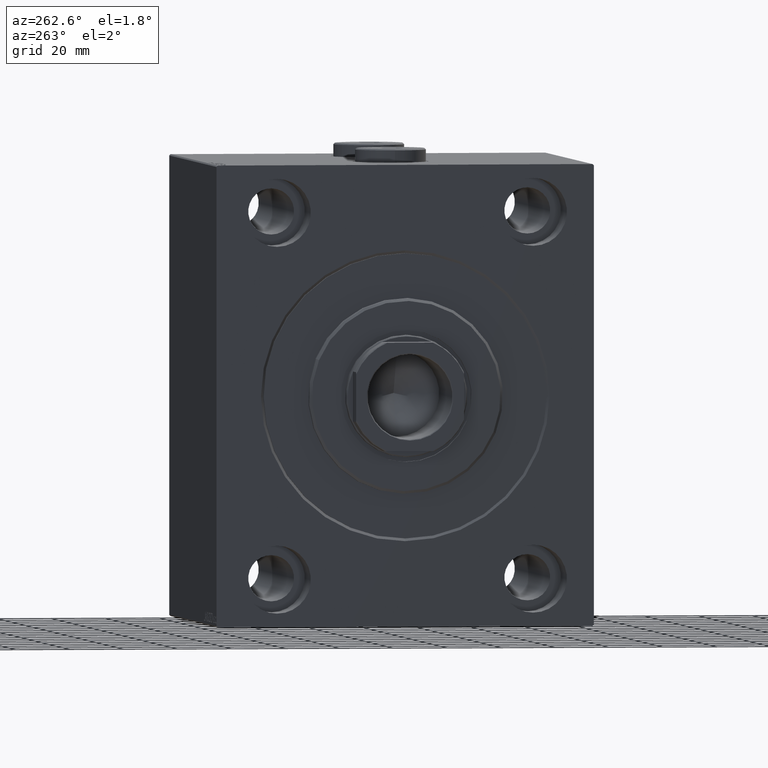
[diagram: clean part render]
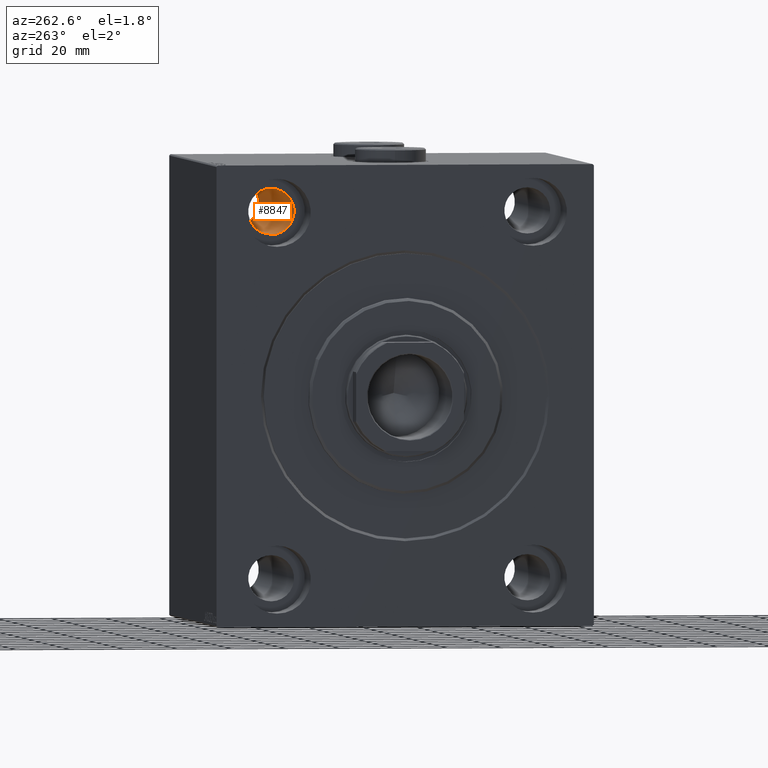
[diagram: same view with one face highlighted and labeled with its STEP entity id]
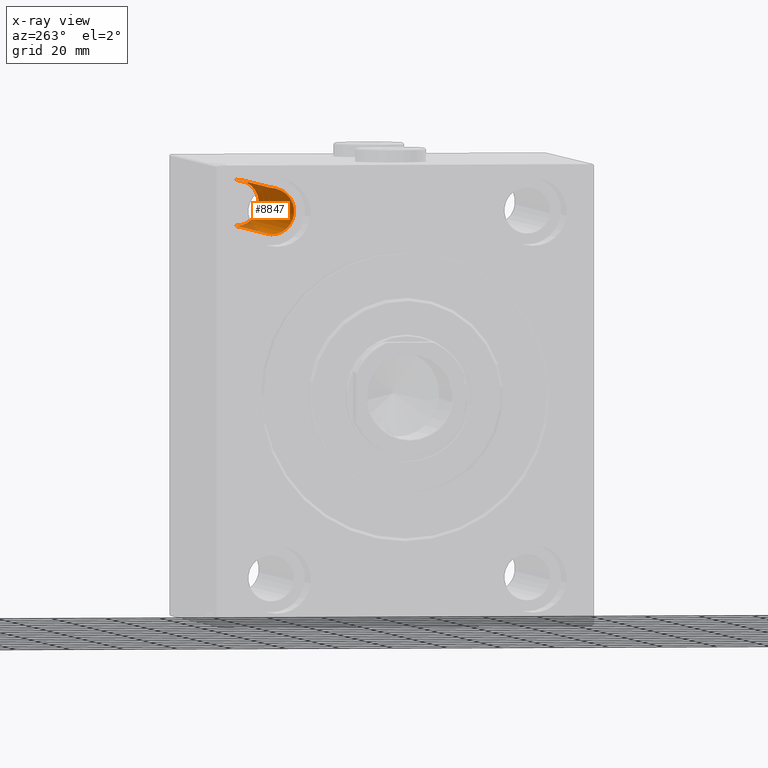
[diagram: x-ray of the same camera — body ghosted, the highlighted face saturated]
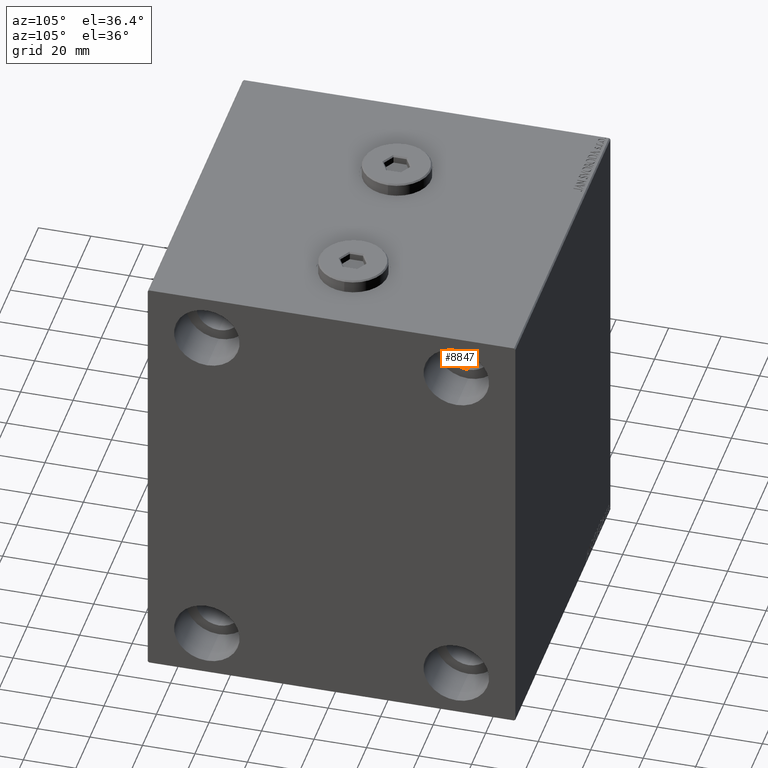
[diagram: same view with one face highlighted and labeled with its STEP entity id]
A machine part, auxiliary view. The second image highlights one B-rep face of the part: STEP entity #8847.
The next image is the same camera in x-ray: the body ghosted, the highlighted face saturated — about 11% of this face is hidden behind the body in this view.
A second angle (auxiliary view) of the same face is appended — the face is thin or edge-on in the first view.
In plain terms, the highlighted cylindrical surface (edge-blend (fillet) strip) has radius 8.5 mm, axis along (-1, -0, -0).
Its self-contained STEP definition (entity closure, byte-faithful):
#1640 = DIRECTION ( 'NONE',  ( 0.000000000000000000, 0.000000000000000000, 1.000000000000000000 ) ) ;
#2134 = AXIS2_PLACEMENT_3D ( 'NONE', #32855, #7997, #4571 ) ;
#2857 = AXIS2_PLACEMENT_3D ( 'NONE', #26050, #40197, #1640 ) ;
#3040 = LINE ( 'NONE', #27905, #5050 ) ;
#4571 = DIRECTION ( 'NONE',  ( 0.000000000000000000, 0.000000000000000000, -1.000000000000000000 ) ) ;
#4780 = DIRECTION ( 'NONE',  ( 0.000000000000000000, 0.000000000000000000, 1.000000000000000000 ) ) ;
#5050 = VECTOR ( 'NONE', #34521, 1000.000000000000000 ) ;
#5705 = EDGE_CURVE ( 'NONE', #23568, #14645, #3040, .T. ) ;
#5799 = EDGE_CURVE ( 'NONE', #18035, #14645, #10157, .T. ) ;
#7475 = LINE ( 'NONE', #15445, #14866 ) ;
#7548 = VERTEX_POINT ( 'NONE', #10317 ) ;
#7997 = DIRECTION ( 'NONE',  ( -1.000000000000000000, -0.000000000000000000, -0.000000000000000000 ) ) ;
#8183 = CARTESIAN_POINT ( 'NONE',  ( 17.00000000000000000, 47.50000000000000711, 59.00000000000000000 ) ) ;
#8847 = ADVANCED_FACE ( 'NONE', ( #15323 ), #15553, .F. ) ;
#8958 = ORIENTED_EDGE ( 'NONE', *, *, #27764, .T. ) ;
#10157 = CIRCLE ( 'NONE', #35559, 8.500000000000007105 ) ;
#10317 = CARTESIAN_POINT ( 'NONE',  ( 118.0000000000000142, 47.50000000000000711, 59.00000000000000000 ) ) ;
#11093 = ORIENTED_EDGE ( 'NONE', *, *, #5705, .F. ) ;
#14002 = EDGE_LOOP ( 'NONE', ( #23211, #8958, #23416, #11093 ) ) ;
#14645 = VERTEX_POINT ( 'NONE', #24839 ) ;
#14866 = VECTOR ( 'NONE', #21609, 1000.000000000000000 ) ;
#15323 = FACE_OUTER_BOUND ( 'NONE', #14002, .T. ) ;
#15445 = CARTESIAN_POINT ( 'NONE',  ( 135.0000000000000000, 47.50000000000000711, 59.00000000000000000 ) ) ;
#15553 = CYLINDRICAL_SURFACE ( 'NONE', #2857, 8.500000000000007105 ) ;
#18035 = VERTEX_POINT ( 'NONE', #8183 ) ;
#20831 = CARTESIAN_POINT ( 'NONE',  ( 118.0000000000000142, 47.50000000000000711, 76.00000000000001421 ) ) ;
#21609 = DIRECTION ( 'NONE',  ( -1.000000000000000000, -0.000000000000000000, -0.000000000000000000 ) ) ;
#23211 = ORIENTED_EDGE ( 'NONE', *, *, #41266, .F. ) ;
#23275 = CIRCLE ( 'NONE', #2134, 8.500000000000007105 ) ;
#23416 = ORIENTED_EDGE ( 'NONE', *, *, #5799, .T. ) ;
#23568 = VERTEX_POINT ( 'NONE', #20831 ) ;
#24839 = CARTESIAN_POINT ( 'NONE',  ( 17.00000000000000000, 47.50000000000000711, 76.00000000000001421 ) ) ;
#25996 = CARTESIAN_POINT ( 'NONE',  ( 17.00000000000000000, 47.50000000000000711, 67.50000000000000000 ) ) ;
#26050 = CARTESIAN_POINT ( 'NONE',  ( 135.0000000000000000, 47.50000000000000711, 67.50000000000000000 ) ) ;
#27764 = EDGE_CURVE ( 'NONE', #7548, #18035, #7475, .T. ) ;
#27905 = CARTESIAN_POINT ( 'NONE',  ( 135.0000000000000000, 47.50000000000000711, 76.00000000000001421 ) ) ;
#29639 = DIRECTION ( 'NONE',  ( -1.000000000000000000, 0.000000000000000000, 0.000000000000000000 ) ) ;
#32855 = CARTESIAN_POINT ( 'NONE',  ( 118.0000000000000142, 47.50000000000000711, 67.50000000000000000 ) ) ;
#34521 = DIRECTION ( 'NONE',  ( -1.000000000000000000, -0.000000000000000000, -0.000000000000000000 ) ) ;
#35559 = AXIS2_PLACEMENT_3D ( 'NONE', #25996, #29639, #4780 ) ;
#40197 = DIRECTION ( 'NONE',  ( -1.000000000000000000, -0.000000000000000000, -0.000000000000000000 ) ) ;
#41266 = EDGE_CURVE ( 'NONE', #7548, #23568, #23275, .T. ) ;